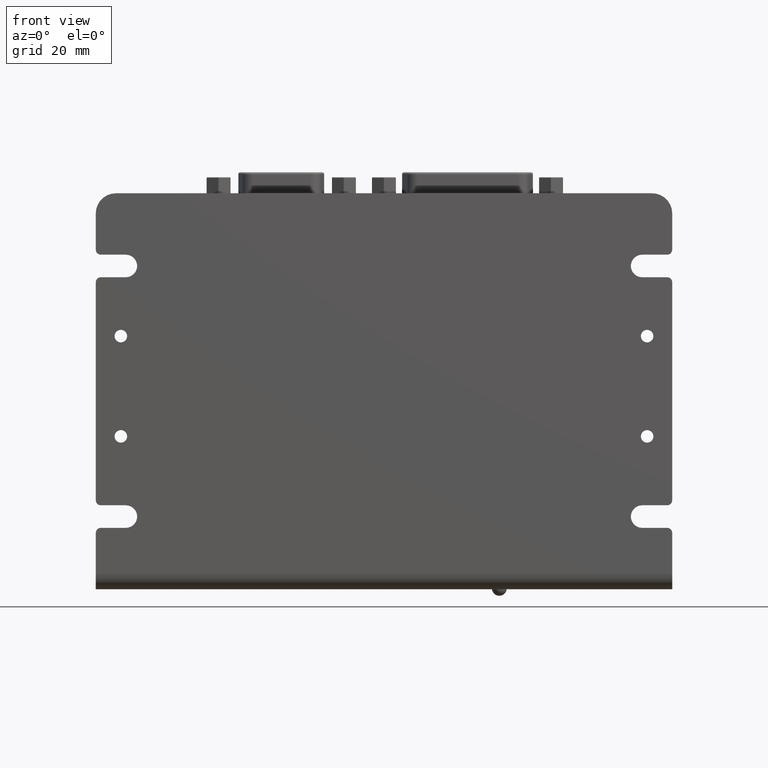
[diagram: clean part render]
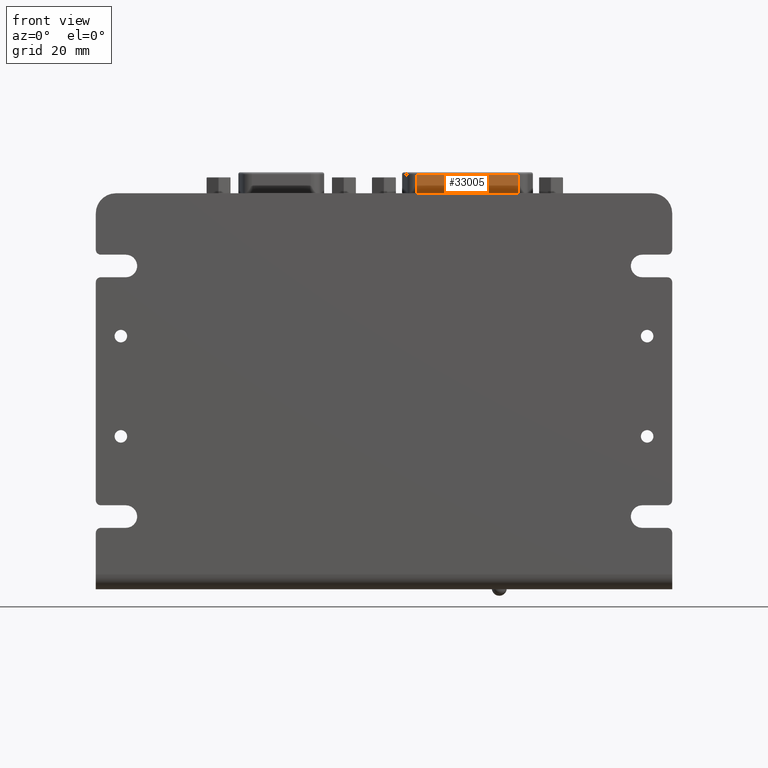
[diagram: same view with one face highlighted and labeled with its STEP entity id]
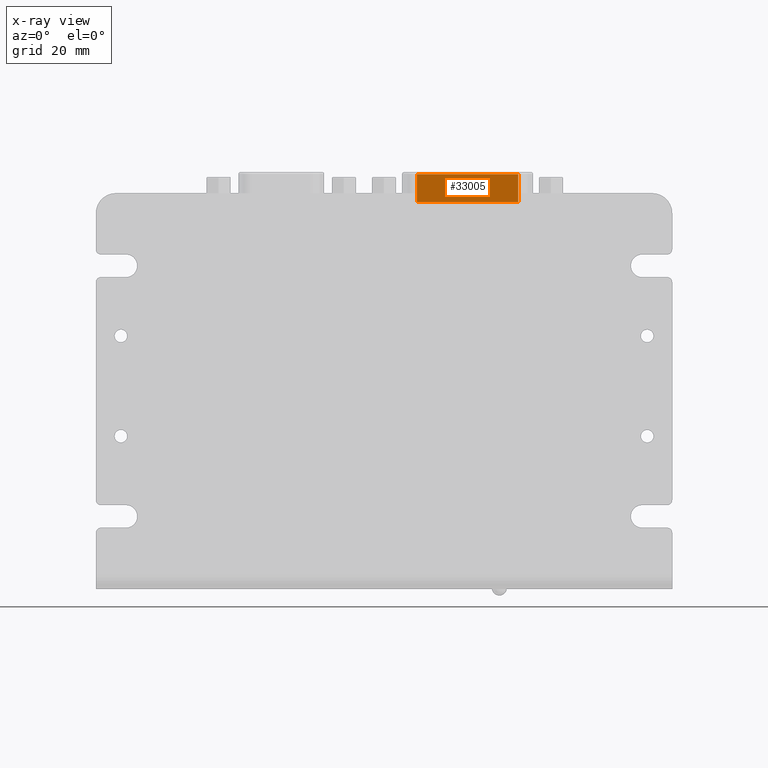
[diagram: x-ray of the same camera — body ghosted, the highlighted face saturated]
A machine part, front view. The second image highlights one B-rep face of the part: STEP entity #33005.
The next image is the same camera in x-ray: the body ghosted, the highlighted face saturated — about 0% of this face is hidden behind the body in this view.
In plain terms, the highlighted planar face has unit normal (0, -1, 0).
Its self-contained STEP definition (entity closure, byte-faithful):
#27093=DIRECTION('',(1.E0,0.E0,0.E0));
#27094=VECTOR('',#27093,2.027139325277E1);
#27095=CARTESIAN_POINT('',(-1.013569662639E1,-4.6E0,0.E0));
#27096=LINE('',#27095,#27094);
#28113=DIRECTION('',(1.E0,0.E0,0.E0));
#28114=VECTOR('',#28113,2.027139325186E1);
#28115=CARTESIAN_POINT('',(-1.013569662608E1,-4.6E0,5.6E0));
#28116=LINE('',#28115,#28114);
#28117=DIRECTION('',(-1.092586338863E-10,0.E0,1.E0));
#28118=VECTOR('',#28117,5.6E0);
#28119=CARTESIAN_POINT('',(1.013569662639E1,-4.6E0,0.E0));
#28120=LINE('',#28119,#28118);
#28121=DIRECTION('',(-5.465279022993E-11,0.E0,-1.E0));
#28122=VECTOR('',#28121,5.6E0);
#28123=CARTESIAN_POINT('',(-1.013569662608E1,-4.6E0,5.6E0));
#28124=LINE('',#28123,#28122);
#29985=CARTESIAN_POINT('',(-1.013569662639E1,-4.6E0,0.E0));
#29986=CARTESIAN_POINT('',(1.013569662639E1,-4.6E0,0.E0));
#29987=VERTEX_POINT('',#29985);
#29988=VERTEX_POINT('',#29986);
#30455=CARTESIAN_POINT('',(-1.013569662639E1,-4.6E0,5.6E0));
#30456=VERTEX_POINT('',#30455);
#30459=CARTESIAN_POINT('',(1.013569662577E1,-4.6E0,5.6E0));
#30460=VERTEX_POINT('',#30459);
#32993=CARTESIAN_POINT('',(-1.2625E1,-4.6E0,0.E0));
#32994=DIRECTION('',(0.E0,-1.E0,0.E0));
#32995=DIRECTION('',(1.E0,0.E0,0.E0));
#32996=AXIS2_PLACEMENT_3D('',#32993,#32994,#32995);
#32997=PLANE('',#32996);
#32998=ORIENTED_EDGE('',*,*,#32961,.T.);
#32999=ORIENTED_EDGE('',*,*,#32988,.F.);
#33000=ORIENTED_EDGE('',*,*,#30852,.F.);
#33002=ORIENTED_EDGE('',*,*,#33001,.F.);
#33003=EDGE_LOOP('',(#32998,#32999,#33000,#33002));
#33004=FACE_OUTER_BOUND('',#33003,.F.);
#33005=ADVANCED_FACE('',(#33004),#32997,.T.);
#30852=EDGE_CURVE('',#29987,#29988,#27096,.T.);
#32961=EDGE_CURVE('',#30456,#30460,#28116,.T.);
#32988=EDGE_CURVE('',#29988,#30460,#28120,.T.);
#33001=EDGE_CURVE('',#30456,#29987,#28124,.T.);